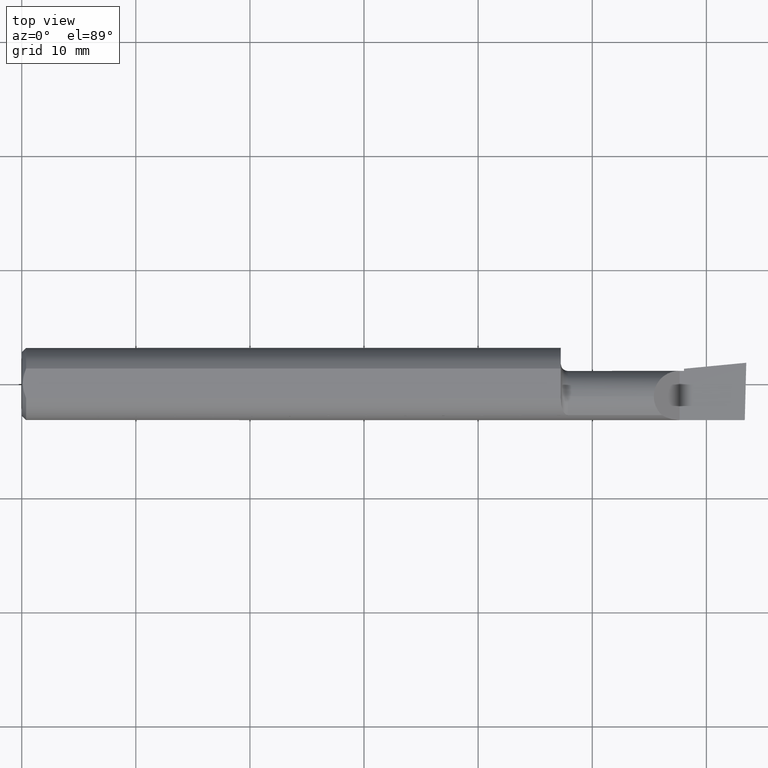
[diagram: clean part render]
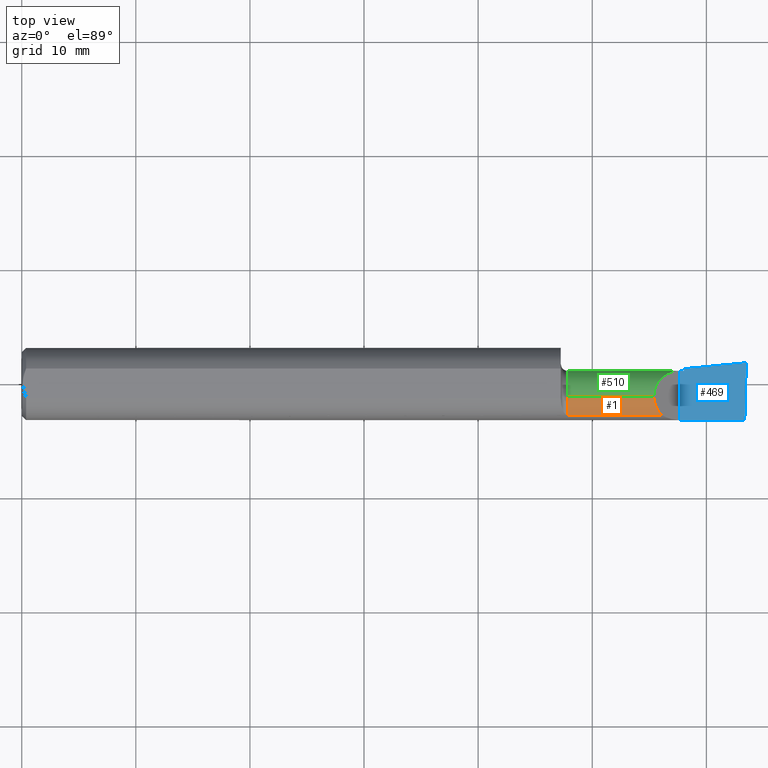
[diagram: same view with three faces highlighted in distinct colors, each labeled with its STEP entity id]
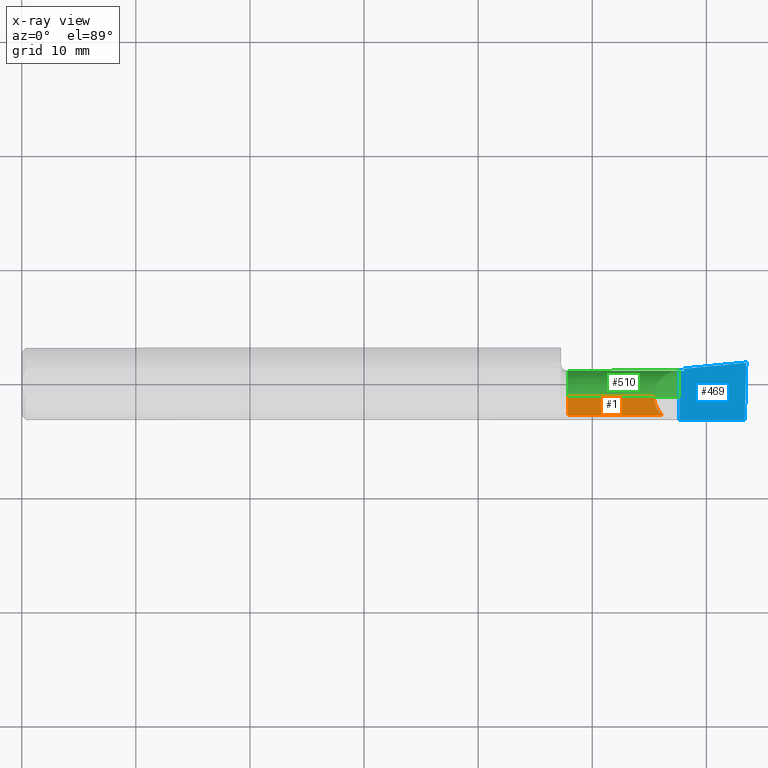
[diagram: x-ray of the same camera — body ghosted, the three highlighted faces saturated]
A machine part, top view with three faces highlighted in distinct colors.
The next image is the same camera in x-ray (body ghosted, the three faces saturated) — at least one of them is partly hidden behind the body in this view.
Their STEP definitions:

[orange] entity #1 — the highlighted cylindrical surface (edge-blend (fillet) strip) has radius 2.2644 mm, axis along (-1, -0, -0).
#1 = ADVANCED_FACE ( 'NONE', ( #624 ), #372, .T. ) ;
#30 = EDGE_CURVE ( 'NONE', #70, #323, #210, .T. ) ;
#31 = CARTESIAN_POINT ( 'NONE',  ( 2.180849999999999511, -0.04399999999999999745, 0.08914999999999995151 ) ) ;
#38 = CARTESIAN_POINT ( 'NONE',  ( 2.208790356734260829, -0.1088159090909091575, 0.06120964326573868214 ) ) ;
#59 = DIRECTION ( 'NONE',  ( -1.000000000000000000, -0.0000000000000000000, -0.0000000000000000000 ) ) ;
#70 = VERTEX_POINT ( 'NONE', #38 ) ;
#148 = ORIENTED_EDGE ( 'NONE', *, *, #241, .F. ) ;
#173 = EDGE_CURVE ( 'NONE', #530, #70, #497, .T. ) ;
#210 =( BOUNDED_CURVE ( )  B_SPLINE_CURVE ( 3, ( #644, #325, #438, #31 ),
 .UNSPECIFIED., .F., .T. ) 
 B_SPLINE_CURVE_WITH_KNOTS ( ( 4, 4 ),
 ( 5.469179596148852518, 6.283185307179586232 ),
 .UNSPECIFIED. ) 
 CURVE ( )  GEOMETRIC_REPRESENTATION_ITEM ( )  RATIONAL_B_SPLINE_CURVE ( ( 1.000000000000000000, 0.9455409277260482526, 0.9455409277260482526, 1.000000000000000000 ) ) 
 REPRESENTATION_ITEM ( '' )  );
#241 = EDGE_CURVE ( 'NONE', #530, #461, #645, .T. ) ;
#275 = EDGE_CURVE ( 'NONE', #323, #461, #377, .T. ) ;
#289 = DIRECTION ( 'NONE',  ( 0.0000000000000000000, 0.0000000000000000000, 1.000000000000000000 ) ) ;
#323 = VERTEX_POINT ( 'NONE', #728 ) ;
#325 = CARTESIAN_POINT ( 'NONE',  ( 2.190699866855738254, -0.09173194857106671540, 0.07930013314426070936 ) ) ;
#346 = CARTESIAN_POINT ( 'NONE',  ( 1.885000000000000009, -0.04399999999999999745, 0.0000000000000000000 ) ) ;
#356 = CARTESIAN_POINT ( 'NONE',  ( 0.0000000000000000000, -0.04399999999999999745, 0.08914999999999995151 ) ) ;
#372 = CYLINDRICAL_SURFACE ( 'NONE', #410, 0.08914999999999995151 ) ;
#377 = LINE ( 'NONE', #356, #678 ) ;
#396 = VECTOR ( 'NONE', #397, 39.37007874015748143 ) ;
#397 = DIRECTION ( 'NONE',  ( 1.000000000000000000, 0.0000000000000000000, 0.0000000000000000000 ) ) ;
#403 = DIRECTION ( 'NONE',  ( -1.000000000000000000, -0.0000000000000000000, -0.0000000000000000000 ) ) ;
#410 = AXIS2_PLACEMENT_3D ( 'NONE', #562, #403, #289 ) ;
#419 = CARTESIAN_POINT ( 'NONE',  ( 1.885000000000000009, -0.04399999999999999745, 0.08914999999999993763 ) ) ;
#438 = CARTESIAN_POINT ( 'NONE',  ( 2.180849999999999067, -0.06888227343086721077, 0.08914999999999997926 ) ) ;
#454 = ORIENTED_EDGE ( 'NONE', *, *, #275, .T. ) ;
#461 = VERTEX_POINT ( 'NONE', #419 ) ;
#492 = CARTESIAN_POINT ( 'NONE',  ( 1.885000000000000009, -0.1088159090909094073, 0.06120964326573841846 ) ) ;
#497 = LINE ( 'NONE', #723, #396 ) ;
#509 = DIRECTION ( 'NONE',  ( 0.0000000000000000000, 0.0000000000000000000, 1.000000000000000000 ) ) ;
#520 = AXIS2_PLACEMENT_3D ( 'NONE', #346, #59, #509 ) ;
#530 = VERTEX_POINT ( 'NONE', #492 ) ;
#562 = CARTESIAN_POINT ( 'NONE',  ( 0.0000000000000000000, -0.04399999999999999745, 0.0000000000000000000 ) ) ;
#570 = DIRECTION ( 'NONE',  ( -1.000000000000000000, -0.0000000000000000000, -0.0000000000000000000 ) ) ;
#624 = FACE_OUTER_BOUND ( 'NONE', #721, .T. ) ;
#644 = CARTESIAN_POINT ( 'NONE',  ( 2.208790356734260829, -0.1088159090909091575, 0.06120964326573868214 ) ) ;
#645 = CIRCLE ( 'NONE', #520, 0.08914999999999993763 ) ;
#678 = VECTOR ( 'NONE', #570, 39.37007874015748143 ) ;
#683 = ORIENTED_EDGE ( 'NONE', *, *, #30, .T. ) ;
#717 = ORIENTED_EDGE ( 'NONE', *, *, #173, .T. ) ;
#721 = EDGE_LOOP ( 'NONE', ( #683, #454, #148, #717 ) ) ;
#723 = CARTESIAN_POINT ( 'NONE',  ( 2.084999999999999964, -0.1088159090909091853, 0.06120964326573867520 ) ) ;
#728 = CARTESIAN_POINT ( 'NONE',  ( 2.180849999999999511, -0.04399999999999999745, 0.08914999999999995151 ) ) ;

[blue] entity #469 — the highlighted planar face has unit normal (-0, 0, -1).
#5 = EDGE_CURVE ( 'NONE', #201, #537, #477, .T. ) ;
#25 = FACE_OUTER_BOUND ( 'NONE', #681, .T. ) ;
#33 = VERTEX_POINT ( 'NONE', #706 ) ;
#46 = LINE ( 'NONE', #166, #505 ) ;
#51 = CARTESIAN_POINT ( 'NONE',  ( 2.270000000000000018, 0.04514999999999985691, 2.816687638038912303E-17 ) ) ;
#55 = ORIENTED_EDGE ( 'NONE', *, *, #441, .T. ) ;
#78 = VERTEX_POINT ( 'NONE', #637 ) ;
#84 = DIRECTION ( 'NONE',  ( -1.000000000000000000, 0.0000000000000000000, 4.194046792260684025E-16 ) ) ;
#97 = VECTOR ( 'NONE', #546, 39.37007874015748143 ) ;
#104 = LINE ( 'NONE', #218, #534 ) ;
#105 = EDGE_CURVE ( 'NONE', #33, #78, #279, .T. ) ;
#113 = DIRECTION ( 'NONE',  ( 1.000000000000000000, 0.0000000000000000000, 0.0000000000000000000 ) ) ;
#125 = CARTESIAN_POINT ( 'NONE',  ( 2.491543817870046862, -0.2497785670779703315, -6.474963748791635999E-17 ) ) ;
#137 = CARTESIAN_POINT ( 'NONE',  ( 2.285000000000000142, 0.05244785463753253579, 9.802155642165059035E-16 ) ) ;
#140 = VERTEX_POINT ( 'NONE', #137 ) ;
#143 = CARTESIAN_POINT ( 'NONE',  ( 2.285000000000000142, -0.2500000000000000555, 2.187580619199813988E-17 ) ) ;
#144 = CARTESIAN_POINT ( 'NONE',  ( 4.111069666048746882E-31, -0.1248499999999999888, 9.802154982235641300E-16 ) ) ;
#151 = EDGE_CURVE ( 'NONE', #140, #468, #104, .T. ) ;
#166 = CARTESIAN_POINT ( 'NONE',  ( 2.270000000000000018, -0.2500000000000000555, 2.816687638038912303E-17 ) ) ;
#184 = VECTOR ( 'NONE', #280, 39.37007874015748143 ) ;
#201 = VERTEX_POINT ( 'NONE', #51 ) ;
#218 = CARTESIAN_POINT ( 'NONE',  ( 1.283350732061822486, -0.04399999999999999745, 4.419721961086355934E-16 ) ) ;
#228 = LINE ( 'NONE', #125, #557 ) ;
#230 = DIRECTION ( 'NONE',  ( 0.02617694830787453339, 0.9996573249755572599, -1.081567693920917438E-17 ) ) ;
#249 = CARTESIAN_POINT ( 'NONE',  ( 2.500000000000000000, -0.2500000000000000555, -6.829619984160658046E-17 ) ) ;
#250 = PLANE ( 'NONE',  #334 ) ;
#258 = EDGE_CURVE ( 'NONE', #78, #201, #46, .T. ) ;
#279 = LINE ( 'NONE', #144, #97 ) ;
#280 = DIRECTION ( 'NONE',  ( 0.0000000000000000000, 1.000000000000000000, 0.0000000000000000000 ) ) ;
#334 = AXIS2_PLACEMENT_3D ( 'NONE', #249, #635, #84 ) ;
#368 = ORIENTED_EDGE ( 'NONE', *, *, #151, .F. ) ;
#376 = ORIENTED_EDGE ( 'NONE', *, *, #5, .F. ) ;
#406 = CARTESIAN_POINT ( 'NONE',  ( 4.111069666048746882E-31, 0.04514999999999994712, 9.802154982235641300E-16 ) ) ;
#426 = ORIENTED_EDGE ( 'NONE', *, *, #258, .F. ) ;
#432 = CARTESIAN_POINT ( 'NONE',  ( 2.285000000000000142, 0.04514999999999999569, 9.802154982235647216E-16 ) ) ;
#441 = EDGE_CURVE ( 'NONE', #33, #468, #228, .T. ) ;
#444 = ORIENTED_EDGE ( 'NONE', *, *, #693, .F. ) ;
#468 = VERTEX_POINT ( 'NONE', #586 ) ;
#469 = ADVANCED_FACE ( 'NONE', ( #25 ), #250, .F. ) ;
#477 = LINE ( 'NONE', #406, #604 ) ;
#505 = VECTOR ( 'NONE', #565, 39.37007874015748143 ) ;
#534 = VECTOR ( 'NONE', #551, 39.37007874015748143 ) ;
#537 = VERTEX_POINT ( 'NONE', #432 ) ;
#546 = DIRECTION ( 'NONE',  ( -1.000000000000000000, -0.0000000000000000000, -0.0000000000000000000 ) ) ;
#551 = DIRECTION ( 'NONE',  ( 0.9953961983671787417, 0.09584575252022459191, -4.174738232790345673E-16 ) ) ;
#557 = VECTOR ( 'NONE', #230, 39.37007874015748143 ) ;
#565 = DIRECTION ( 'NONE',  ( -0.0000000000000000000, 1.000000000000000000, -0.0000000000000000000 ) ) ;
#566 = LINE ( 'NONE', #143, #184 ) ;
#586 = CARTESIAN_POINT ( 'NONE',  ( 2.500000000000007550, 0.07315000000001690983, 5.243440742839345051E-14 ) ) ;
#604 = VECTOR ( 'NONE', #113, 39.37007874015748143 ) ;
#635 = DIRECTION ( 'NONE',  ( -4.194046792260684025E-16, 0.0000000000000000000, -1.000000000000000000 ) ) ;
#637 = CARTESIAN_POINT ( 'NONE',  ( 2.270000000000000018, -0.1248500000000000165, 2.816687638038912303E-17 ) ) ;
#681 = EDGE_LOOP ( 'NONE', ( #707, #55, #368, #444, #376, #426 ) ) ;
#693 = EDGE_CURVE ( 'NONE', #537, #140, #566, .T. ) ;
#706 = CARTESIAN_POINT ( 'NONE',  ( 2.494815187529301426, -0.1248500000000000304, -6.610128768667490488E-17 ) ) ;
#707 = ORIENTED_EDGE ( 'NONE', *, *, #105, .F. ) ;

[green] entity #510 — the highlighted cylindrical surface (edge-blend (fillet) strip) has radius 2.2644 mm, axis along (-1, -0, -0).
#5 = EDGE_CURVE ( 'NONE', #201, #537, #477, .T. ) ;
#6 = AXIS2_PLACEMENT_3D ( 'NONE', #583, #472, #366 ) ;
#11 = EDGE_CURVE ( 'NONE', #537, #701, #73, .T. ) ;
#35 = CARTESIAN_POINT ( 'NONE',  ( 2.180849999999999067, 0.008222860914438554630, 0.08914999999999995151 ) ) ;
#51 = CARTESIAN_POINT ( 'NONE',  ( 2.270000000000000018, 0.04514999999999985691, 2.816687638038912303E-17 ) ) ;
#73 = CIRCLE ( 'NONE', #548, 0.08914999999999999314 ) ;
#86 = ORIENTED_EDGE ( 'NONE', *, *, #318, .F. ) ;
#89 = CARTESIAN_POINT ( 'NONE',  ( 2.270000000000000018, 0.04514999999999985691, 2.816687638038912303E-17 ) ) ;
#113 = DIRECTION ( 'NONE',  ( 1.000000000000000000, 0.0000000000000000000, 0.0000000000000000000 ) ) ;
#115 = EDGE_CURVE ( 'NONE', #323, #201, #724, .T. ) ;
#123 = EDGE_CURVE ( 'NONE', #701, #224, #559, .T. ) ;
#131 = AXIS2_PLACEMENT_3D ( 'NONE', #677, #573, #306 ) ;
#158 = ORIENTED_EDGE ( 'NONE', *, *, #5, .T. ) ;
#186 = CYLINDRICAL_SURFACE ( 'NONE', #6, 0.08914999999999995151 ) ;
#193 = ORIENTED_EDGE ( 'NONE', *, *, #115, .T. ) ;
#201 = VERTEX_POINT ( 'NONE', #51 ) ;
#213 = EDGE_LOOP ( 'NONE', ( #556, #574, #86, #698, #193, #158 ) ) ;
#224 = VERTEX_POINT ( 'NONE', #663 ) ;
#263 = CARTESIAN_POINT ( 'NONE',  ( 0.0000000000000000000, -0.04399999999999998357, -0.08914999999999995151 ) ) ;
#275 = EDGE_CURVE ( 'NONE', #323, #461, #377, .T. ) ;
#287 = DIRECTION ( 'NONE',  ( 0.0000000000000000000, 0.0000000000000000000, 1.000000000000000000 ) ) ;
#306 = DIRECTION ( 'NONE',  ( 0.0000000000000000000, 0.0000000000000000000, 1.000000000000000000 ) ) ;
#318 = EDGE_CURVE ( 'NONE', #461, #224, #362, .T. ) ;
#323 = VERTEX_POINT ( 'NONE', #728 ) ;
#356 = CARTESIAN_POINT ( 'NONE',  ( 0.0000000000000000000, -0.04399999999999999745, 0.08914999999999995151 ) ) ;
#362 = CIRCLE ( 'NONE', #131, 0.08914999999999993763 ) ;
#366 = DIRECTION ( 'NONE',  ( 0.0000000000000000000, 0.0000000000000000000, 1.000000000000000000 ) ) ;
#377 = LINE ( 'NONE', #356, #678 ) ;
#406 = CARTESIAN_POINT ( 'NONE',  ( 4.111069666048746882E-31, 0.04514999999999994712, 9.802154982235641300E-16 ) ) ;
#419 = CARTESIAN_POINT ( 'NONE',  ( 1.885000000000000009, -0.04399999999999999745, 0.08914999999999993763 ) ) ;
#430 = CARTESIAN_POINT ( 'NONE',  ( 2.217777139085560734, 0.04514999999999996100, 0.05222286091443856942 ) ) ;
#432 = CARTESIAN_POINT ( 'NONE',  ( 2.285000000000000142, 0.04514999999999999569, 9.802154982235647216E-16 ) ) ;
#461 = VERTEX_POINT ( 'NONE', #419 ) ;
#472 = DIRECTION ( 'NONE',  ( -1.000000000000000000, -0.0000000000000000000, -0.0000000000000000000 ) ) ;
#477 = LINE ( 'NONE', #406, #604 ) ;
#502 = CARTESIAN_POINT ( 'NONE',  ( 2.285000000000000142, -0.04399999999999999745, -0.08914999999999999314 ) ) ;
#510 = ADVANCED_FACE ( 'NONE', ( #656 ), #186, .T. ) ;
#537 = VERTEX_POINT ( 'NONE', #432 ) ;
#538 = VECTOR ( 'NONE', #650, 39.37007874015748143 ) ;
#548 = AXIS2_PLACEMENT_3D ( 'NONE', #679, #569, #287 ) ;
#556 = ORIENTED_EDGE ( 'NONE', *, *, #11, .T. ) ;
#559 = LINE ( 'NONE', #263, #538 ) ;
#569 = DIRECTION ( 'NONE',  ( -1.000000000000000000, -0.0000000000000000000, -0.0000000000000000000 ) ) ;
#570 = DIRECTION ( 'NONE',  ( -1.000000000000000000, -0.0000000000000000000, -0.0000000000000000000 ) ) ;
#573 = DIRECTION ( 'NONE',  ( -1.000000000000000000, -0.0000000000000000000, -0.0000000000000000000 ) ) ;
#574 = ORIENTED_EDGE ( 'NONE', *, *, #123, .T. ) ;
#583 = CARTESIAN_POINT ( 'NONE',  ( 0.0000000000000000000, -0.04399999999999999745, 0.0000000000000000000 ) ) ;
#604 = VECTOR ( 'NONE', #113, 39.37007874015748143 ) ;
#650 = DIRECTION ( 'NONE',  ( -1.000000000000000000, -0.0000000000000000000, -0.0000000000000000000 ) ) ;
#656 = FACE_OUTER_BOUND ( 'NONE', #213, .T. ) ;
#663 = CARTESIAN_POINT ( 'NONE',  ( 1.885000000000000009, -0.04399999999999997663, -0.08914999999999993763 ) ) ;
#677 = CARTESIAN_POINT ( 'NONE',  ( 1.885000000000000009, -0.04399999999999999745, 0.0000000000000000000 ) ) ;
#678 = VECTOR ( 'NONE', #570, 39.37007874015748143 ) ;
#679 = CARTESIAN_POINT ( 'NONE',  ( 2.285000000000000142, -0.04399999999999999745, 0.0000000000000000000 ) ) ;
#698 = ORIENTED_EDGE ( 'NONE', *, *, #275, .F. ) ;
#701 = VERTEX_POINT ( 'NONE', #502 ) ;
#703 = CARTESIAN_POINT ( 'NONE',  ( 2.180849999999999511, -0.04399999999999999745, 0.08914999999999995151 ) ) ;
#724 =( BOUNDED_CURVE ( )  B_SPLINE_CURVE ( 3, ( #703, #35, #430, #89 ),
 .UNSPECIFIED., .F., .T. ) 
 B_SPLINE_CURVE_WITH_KNOTS ( ( 4, 4 ),
 ( 0.0000000000000000000, 1.570796326794896558 ),
 .UNSPECIFIED. ) 
 CURVE ( )  GEOMETRIC_REPRESENTATION_ITEM ( )  RATIONAL_B_SPLINE_CURVE ( ( 1.000000000000000000, 0.8047378541243649375, 0.8047378541243649375, 1.000000000000000000 ) ) 
 REPRESENTATION_ITEM ( '' )  );
#728 = CARTESIAN_POINT ( 'NONE',  ( 2.180849999999999511, -0.04399999999999999745, 0.08914999999999995151 ) ) ;